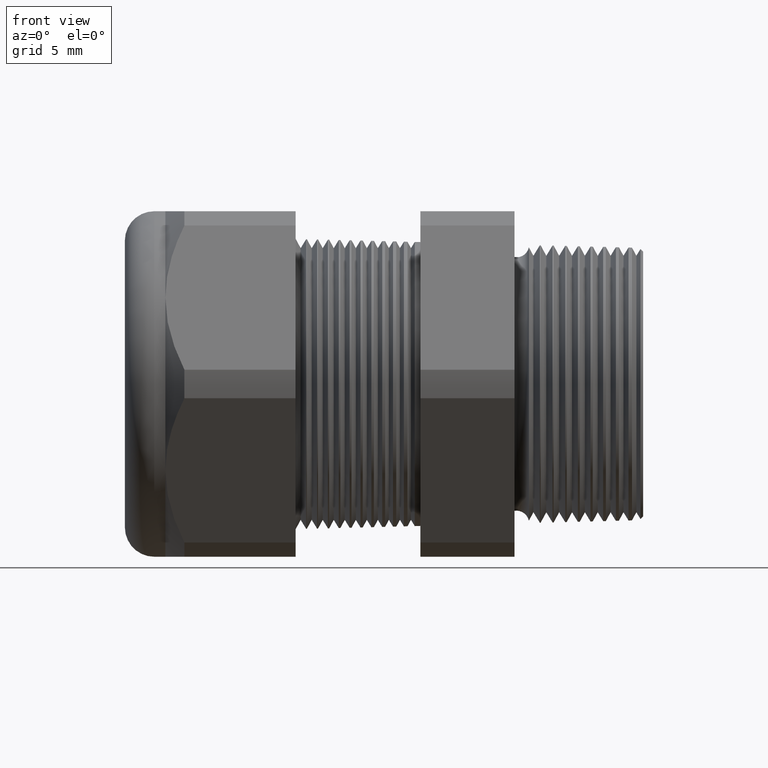
[diagram: clean part render]
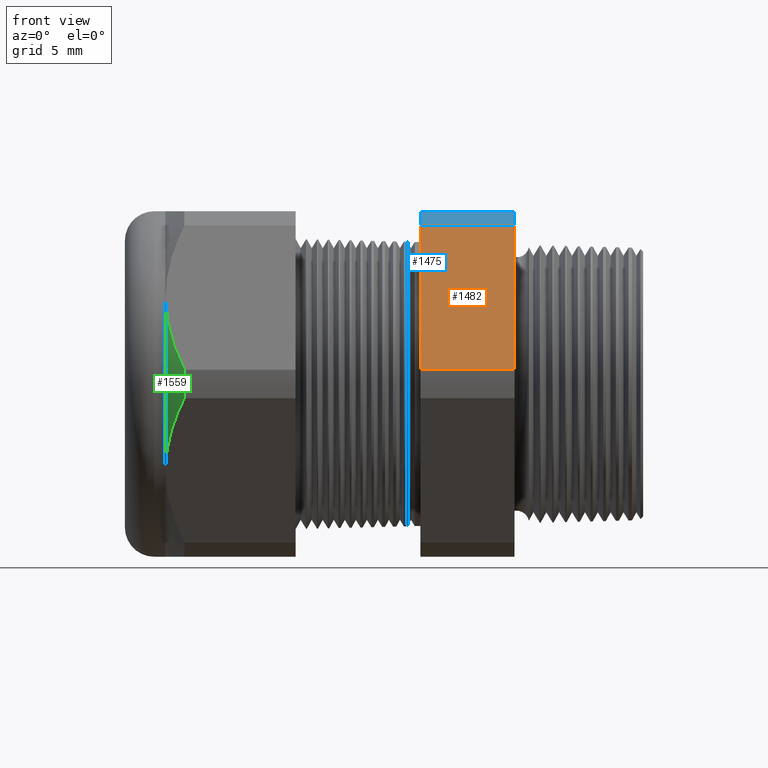
[diagram: same view with three faces highlighted in distinct colors, each labeled with its STEP entity id]
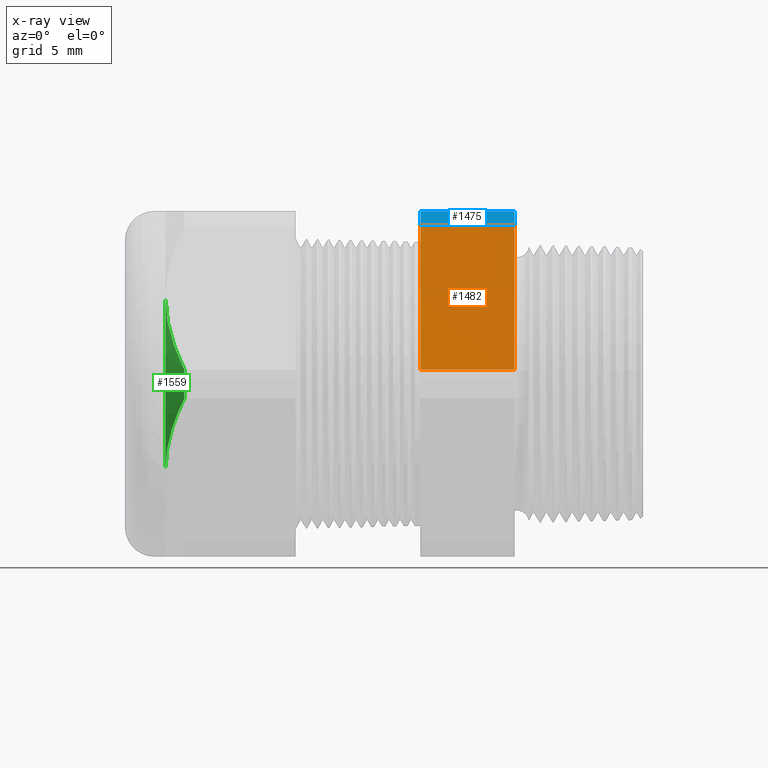
[diagram: x-ray of the same camera — body ghosted, the three highlighted faces saturated]
A machine part, front view with three faces highlighted in distinct colors.
The next image is the same camera in x-ray (body ghosted, the three faces saturated) — at least one of them is partly hidden behind the body in this view.
Their STEP definitions:

[orange] entity #1482 — the highlighted planar face has unit normal (0, -0.866, 0.5).
#1317 = VERTEX_POINT ( 'NONE', #4062 ) ;
#1319 = EDGE_CURVE ( 'NONE', #1317, #1320, #4061, .T. ) ;
#1320 = VERTEX_POINT ( 'NONE', #4057 ) ;
#1393 = VERTEX_POINT ( 'NONE', #4173 ) ;
#1394 = VERTEX_POINT ( 'NONE', #4172 ) ;
#1452 = EDGE_CURVE ( 'NONE', #1393, #1394, #4238, .T. ) ;
#1480 = EDGE_CURVE ( 'NONE', #1317, #1394, #4320, .T. ) ;
#1482 = ADVANCED_FACE ( 'NONE', ( #4316 ), #4315, .T. ) ;
#1483 = EDGE_LOOP ( 'NONE', ( #1535, #1536, #1537, #1539 ) ) ;
#1535 = ORIENTED_EDGE ( 'NONE', *, *, #1480, .T. ) ;
#1536 = ORIENTED_EDGE ( 'NONE', *, *, #1452, .F. ) ;
#1537 = ORIENTED_EDGE ( 'NONE', *, *, #1538, .F. ) ;
#1538 = EDGE_CURVE ( 'NONE', #1320, #1393, #4370, .T. ) ;
#1539 = ORIENTED_EDGE ( 'NONE', *, *, #1319, .F. ) ;
#4057 = CARTESIAN_POINT ( 'NONE',  ( -0.3100000000000000000, -0.5202473208008777700, 0.03890520787129464500 ) ) ;
#4058 = DIRECTION ( 'NONE',  ( 0.0000000000000000000, -0.4999999999999998300, -0.8660254037844388200 ) ) ;
#4059 = VECTOR ( 'NONE', #4058, 39.37007874015748100 ) ;
#4060 = CARTESIAN_POINT ( 'NONE',  ( -0.3100000000000000000, -0.1720319397786864200, 0.6420319397786858900 ) ) ;
#4061 = LINE ( 'NONE', #4060, #4059 ) ;
#4062 = CARTESIAN_POINT ( 'NONE',  ( -0.3100000000000000000, -0.2938165587564945900, 0.4310947921287050500 ) ) ;
#4172 = CARTESIAN_POINT ( 'NONE',  ( -0.5659055118110235500, -0.2938165587564945900, 0.4310947921287050500 ) ) ;
#4173 = CARTESIAN_POINT ( 'NONE',  ( -0.5659055118110235500, -0.5202473208008777700, 0.03890520787129464500 ) ) ;
#4235 = DIRECTION ( 'NONE',  ( 0.0000000000000000000, 0.4999999999999998300, 0.8660254037844388200 ) ) ;
#4236 = VECTOR ( 'NONE', #4235, 39.37007874015748100 ) ;
#4237 = CARTESIAN_POINT ( 'NONE',  ( -0.5659055118110235500, -0.1720319397786864200, 0.6420319397786858900 ) ) ;
#4238 = LINE ( 'NONE', #4237, #4236 ) ;
#4311 = DIRECTION ( 'NONE',  ( 0.0000000000000000000, -0.4999999999999998300, -0.8660254037844388200 ) ) ;
#4312 = DIRECTION ( 'NONE',  ( 0.0000000000000000000, -0.8660254037844388200, 0.4999999999999998300 ) ) ;
#4313 = CARTESIAN_POINT ( 'NONE',  ( 0.03999999999999984800, -0.5202473208008777700, 0.03890520787129467300 ) ) ;
#4314 = AXIS2_PLACEMENT_3D ( 'NONE', #4313, #4312, #4311 ) ;
#4315 = PLANE ( 'NONE',  #4314 ) ;
#4316 = FACE_OUTER_BOUND ( 'NONE', #1483, .T. ) ;
#4317 = DIRECTION ( 'NONE',  ( -1.000000000000000000, 0.0000000000000000000, 0.0000000000000000000 ) ) ;
#4318 = VECTOR ( 'NONE', #4317, 39.37007874015748100 ) ;
#4319 = CARTESIAN_POINT ( 'NONE',  ( 0.03999999999999984800, -0.2938165587564945900, 0.4310947921287050500 ) ) ;
#4320 = LINE ( 'NONE', #4319, #4318 ) ;
#4363 = DIRECTION ( 'NONE',  ( -1.000000000000000000, 0.0000000000000000000, 0.0000000000000000000 ) ) ;
#4364 = VECTOR ( 'NONE', #4363, 39.37007874015748100 ) ;
#4365 = CARTESIAN_POINT ( 'NONE',  ( 0.03999999999999984800, -0.5202473208008777700, 0.03890520787129464500 ) ) ;
#4370 = LINE ( 'NONE', #4365, #4364 ) ;

[blue] entity #1475 — the highlighted cylindrical surface (partial cylindrical patch) has radius 13.2512 mm, axis along (-1, 0, 0).
#1314 = VERTEX_POINT ( 'NONE', #4003 ) ;
#1316 = EDGE_CURVE ( 'NONE', #1314, #1317, #4067, .T. ) ;
#1317 = VERTEX_POINT ( 'NONE', #4062 ) ;
#1394 = VERTEX_POINT ( 'NONE', #4172 ) ;
#1454 = EDGE_CURVE ( 'NONE', #1394, #1455, #4234, .T. ) ;
#1455 = VERTEX_POINT ( 'NONE', #4229 ) ;
#1473 = EDGE_CURVE ( 'NONE', #1314, #1455, #4265, .T. ) ;
#1475 = ADVANCED_FACE ( 'NONE', ( #4261 ), #4260, .T. ) ;
#1476 = EDGE_LOOP ( 'NONE', ( #1477, #1478, #1479, #1481 ) ) ;
#1477 = ORIENTED_EDGE ( 'NONE', *, *, #1473, .T. ) ;
#1478 = ORIENTED_EDGE ( 'NONE', *, *, #1454, .F. ) ;
#1479 = ORIENTED_EDGE ( 'NONE', *, *, #1480, .F. ) ;
#1480 = EDGE_CURVE ( 'NONE', #1317, #1394, #4320, .T. ) ;
#1481 = ORIENTED_EDGE ( 'NONE', *, *, #1316, .F. ) ;
#4003 = CARTESIAN_POINT ( 'NONE',  ( -0.3100000000000000000, -0.2264307620443835300, 0.4699999999999997000 ) ) ;
#4062 = CARTESIAN_POINT ( 'NONE',  ( -0.3100000000000000000, -0.2938165587564945900, 0.4310947921287050500 ) ) ;
#4063 = DIRECTION ( 'NONE',  ( 0.0000000000000000000, 0.0000000000000000000, -1.000000000000000000 ) ) ;
#4064 = DIRECTION ( 'NONE',  ( 1.000000000000000000, 0.0000000000000000000, 0.0000000000000000000 ) ) ;
#4065 = CARTESIAN_POINT ( 'NONE',  ( -0.3100000000000000000, 0.0000000000000000000, 0.0000000000000000000 ) ) ;
#4066 = AXIS2_PLACEMENT_3D ( 'NONE', #4065, #4064, #4063 ) ;
#4067 = CIRCLE ( 'NONE', #4066, 0.5217000000000000500 ) ;
#4172 = CARTESIAN_POINT ( 'NONE',  ( -0.5659055118110235500, -0.2938165587564945900, 0.4310947921287050500 ) ) ;
#4229 = CARTESIAN_POINT ( 'NONE',  ( -0.5659055118110235500, -0.2264307620443835300, 0.4699999999999997000 ) ) ;
#4230 = DIRECTION ( 'NONE',  ( 0.0000000000000000000, 0.0000000000000000000, 1.000000000000000000 ) ) ;
#4231 = DIRECTION ( 'NONE',  ( -1.000000000000000000, 0.0000000000000000000, 0.0000000000000000000 ) ) ;
#4232 = CARTESIAN_POINT ( 'NONE',  ( -0.5659055118110235500, 0.0000000000000000000, 0.0000000000000000000 ) ) ;
#4233 = AXIS2_PLACEMENT_3D ( 'NONE', #4232, #4231, #4230 ) ;
#4234 = CIRCLE ( 'NONE', #4233, 0.5217000000000000500 ) ;
#4260 = CYLINDRICAL_SURFACE ( 'NONE', #4324, 0.5217000000000000500 ) ;
#4261 = FACE_OUTER_BOUND ( 'NONE', #1476, .T. ) ;
#4262 = DIRECTION ( 'NONE',  ( -1.000000000000000000, 0.0000000000000000000, 0.0000000000000000000 ) ) ;
#4263 = VECTOR ( 'NONE', #4262, 39.37007874015748100 ) ;
#4264 = CARTESIAN_POINT ( 'NONE',  ( 0.03999999999999984800, -0.2264307620443835300, 0.4699999999999997000 ) ) ;
#4265 = LINE ( 'NONE', #4264, #4263 ) ;
#4317 = DIRECTION ( 'NONE',  ( -1.000000000000000000, 0.0000000000000000000, 0.0000000000000000000 ) ) ;
#4318 = VECTOR ( 'NONE', #4317, 39.37007874015748100 ) ;
#4319 = CARTESIAN_POINT ( 'NONE',  ( 0.03999999999999984800, -0.2938165587564945900, 0.4310947921287050500 ) ) ;
#4320 = LINE ( 'NONE', #4319, #4318 ) ;
#4321 = DIRECTION ( 'NONE',  ( 0.0000000000000000000, 0.0000000000000000000, 1.000000000000000000 ) ) ;
#4322 = DIRECTION ( 'NONE',  ( -1.000000000000000000, 0.0000000000000000000, 0.0000000000000000000 ) ) ;
#4323 = CARTESIAN_POINT ( 'NONE',  ( 0.03999999999999984800, 0.0000000000000000000, 0.0000000000000000000 ) ) ;
#4324 = AXIS2_PLACEMENT_3D ( 'NONE', #4323, #4322, #4321 ) ;

[green] entity #1559 — the highlighted conical surface has half-angle 45 deg.
#1182 = VERTEX_POINT ( 'NONE', #3706 ) ;
#1184 = EDGE_CURVE ( 'NONE', #1182, #1185, #3452, .T. ) ;
#1185 = VERTEX_POINT ( 'NONE', #3759 ) ;
#1238 = VERTEX_POINT ( 'NONE', #3825 ) ;
#1240 = EDGE_CURVE ( 'NONE', #1238, #1252, #3875, .T. ) ;
#1252 = VERTEX_POINT ( 'NONE', #3910 ) ;
#1254 = EDGE_CURVE ( 'NONE', #1252, #1182, #3909, .T. ) ;
#1354 = EDGE_CURVE ( 'NONE', #1238, #1185, #4125, .T. ) ;
#1559 = ADVANCED_FACE ( 'NONE', ( #4403 ), #4402, .T. ) ;
#1560 = EDGE_LOOP ( 'NONE', ( #1609, #1610, #1611, #1612 ) ) ;
#1609 = ORIENTED_EDGE ( 'NONE', *, *, #1254, .F. ) ;
#1610 = ORIENTED_EDGE ( 'NONE', *, *, #1240, .F. ) ;
#1611 = ORIENTED_EDGE ( 'NONE', *, *, #1354, .T. ) ;
#1612 = ORIENTED_EDGE ( 'NONE', *, *, #1184, .F. ) ;
#3452 = B_SPLINE_CURVE_WITH_KNOTS ( 'NONE', 3,
 ( #3758, #3757, #3756, #3755, #3754, #3753, #3752, #3751, #3750, #3749 ),
 .UNSPECIFIED., .F., .F.,
 ( 4, 2, 2, 2, 4 ),
 ( 2.483251536678829300E-007, 0.002951677829872990000, 0.004427392582232652300, 0.005165249958412484200, 0.005903107334592316800 ),
 .UNSPECIFIED. ) ;
#3706 = CARTESIAN_POINT ( 'NONE',  ( -1.208063779527559100, -0.5202473208008777700, -0.03890520787129495000 ) ) ;
#3749 = CARTESIAN_POINT ( 'NONE',  ( -1.259763779527559400, -0.4070319397786861800, -0.2350000000000001300 ) ) ;
#3750 = CARTESIAN_POINT ( 'NONE',  ( -1.259763779527559400, -0.4119326305003307400, -0.2265117546779304700 ) ) ;
#3751 = CARTESIAN_POINT ( 'NONE',  ( -1.259453644849874300, -0.4168781440523186000, -0.2179458739363668000 ) ) ;
#3752 = CARTESIAN_POINT ( 'NONE',  ( -1.258221849142435500, -0.4267040029977489100, -0.2009269870148765500 ) ) ;
#3753 = CARTESIAN_POINT ( 'NONE',  ( -1.257304216752656200, -0.4315793332085023900, -0.1924826673861758100 ) ) ;
#3754 = CARTESIAN_POINT ( 'NONE',  ( -1.253700751481475800, -0.4460993342073095200, -0.1673332879302909800 ) ) ;
#3755 = CARTESIAN_POINT ( 'NONE',  ( -1.250164085422761800, -0.4556379823307484300, -0.1508118647449733200 ) ) ;
#3756 = CARTESIAN_POINT ( 'NONE',  ( -1.236620445010038400, -0.4838883643614172400, -0.1018807677346239400 ) ) ;
#3757 = CARTESIAN_POINT ( 'NONE',  ( -1.223697825203295100, -0.5022367785154768800, -0.07010038218147658700 ) ) ;
#3758 = CARTESIAN_POINT ( 'NONE',  ( -1.208063779527559100, -0.5202473208008777700, -0.03890520787129495000 ) ) ;
#3759 = CARTESIAN_POINT ( 'NONE',  ( -1.259763779527559400, -0.4070319397786861800, -0.2350000000000001300 ) ) ;
#3825 = CARTESIAN_POINT ( 'NONE',  ( -1.259763779527559400, -0.4070319397786862900, 0.2349999999999999600 ) ) ;
#3868 = CARTESIAN_POINT ( 'NONE',  ( -1.208063779527559100, -0.5202473208008777700, 0.03890520787129464500 ) ) ;
#3869 = CARTESIAN_POINT ( 'NONE',  ( -1.223717189021966700, -0.5022144712456754200, 0.07013901950615096500 ) ) ;
#3870 = CARTESIAN_POINT ( 'NONE',  ( -1.236822062588142500, -0.4835762490957483700, 0.1024213672325803200 ) ) ;
#3871 = CARTESIAN_POINT ( 'NONE',  ( -1.254818111347315100, -0.4458197490082083700, 0.1678175437001784300 ) ) ;
#3872 = CARTESIAN_POINT ( 'NONE',  ( -1.259763779527558700, -0.4266212606411438600, 0.2010703009804539800 ) ) ;
#3873 = CARTESIAN_POINT ( 'NONE',  ( -1.259763779527559400, -0.4070319397786862900, 0.2349999999999999600 ) ) ;
#3875 = B_SPLINE_CURVE_WITH_KNOTS ( 'NONE', 3,
 ( #3873, #3872, #3871, #3870, #3869, #3868 ),
 .UNSPECIFIED., .F., .F.,
 ( 4, 2, 4 ),
 ( 0.005903107334592319400, 0.008852512982428785800, 0.01180191863026525300 ),
 .UNSPECIFIED. ) ;
#3905 = DIRECTION ( 'NONE',  ( 0.0000000000000000000, 0.0000000000000000000, -1.000000000000000000 ) ) ;
#3906 = DIRECTION ( 'NONE',  ( 1.000000000000000000, 0.0000000000000000000, 0.0000000000000000000 ) ) ;
#3907 = CARTESIAN_POINT ( 'NONE',  ( -1.208063779527559100, 0.0000000000000000000, 0.0000000000000000000 ) ) ;
#3908 = AXIS2_PLACEMENT_3D ( 'NONE', #3907, #3906, #3905 ) ;
#3909 = CIRCLE ( 'NONE', #3908, 0.5217000000000000500 ) ;
#3910 = CARTESIAN_POINT ( 'NONE',  ( -1.208063779527559100, -0.5202473208008777700, 0.03890520787129464500 ) ) ;
#4121 = DIRECTION ( 'NONE',  ( 0.0000000000000000000, 0.0000000000000000000, -1.000000000000000000 ) ) ;
#4122 = DIRECTION ( 'NONE',  ( 1.000000000000000000, 0.0000000000000000000, 0.0000000000000000000 ) ) ;
#4123 = CARTESIAN_POINT ( 'NONE',  ( -1.259763779527559400, 0.0000000000000000000, 0.0000000000000000000 ) ) ;
#4124 = AXIS2_PLACEMENT_3D ( 'NONE', #4123, #4122, #4121 ) ;
#4125 = CIRCLE ( 'NONE', #4124, 0.4699999999999999200 ) ;
#4398 = DIRECTION ( 'NONE',  ( 0.0000000000000000000, 0.0000000000000000000, 1.000000000000000000 ) ) ;
#4399 = DIRECTION ( 'NONE',  ( 1.000000000000000000, 0.0000000000000000000, 0.0000000000000000000 ) ) ;
#4400 = AXIS2_PLACEMENT_3D ( 'NONE', #4407, #4399, #4398 ) ;
#4402 = CONICAL_SURFACE ( 'NONE', #4400, 0.4699999999999997500, 0.7853981633974501700 ) ;
#4403 = FACE_OUTER_BOUND ( 'NONE', #1560, .T. ) ;
#4407 = CARTESIAN_POINT ( 'NONE',  ( -1.259763779527559400, 0.0000000000000000000, 0.0000000000000000000 ) ) ;